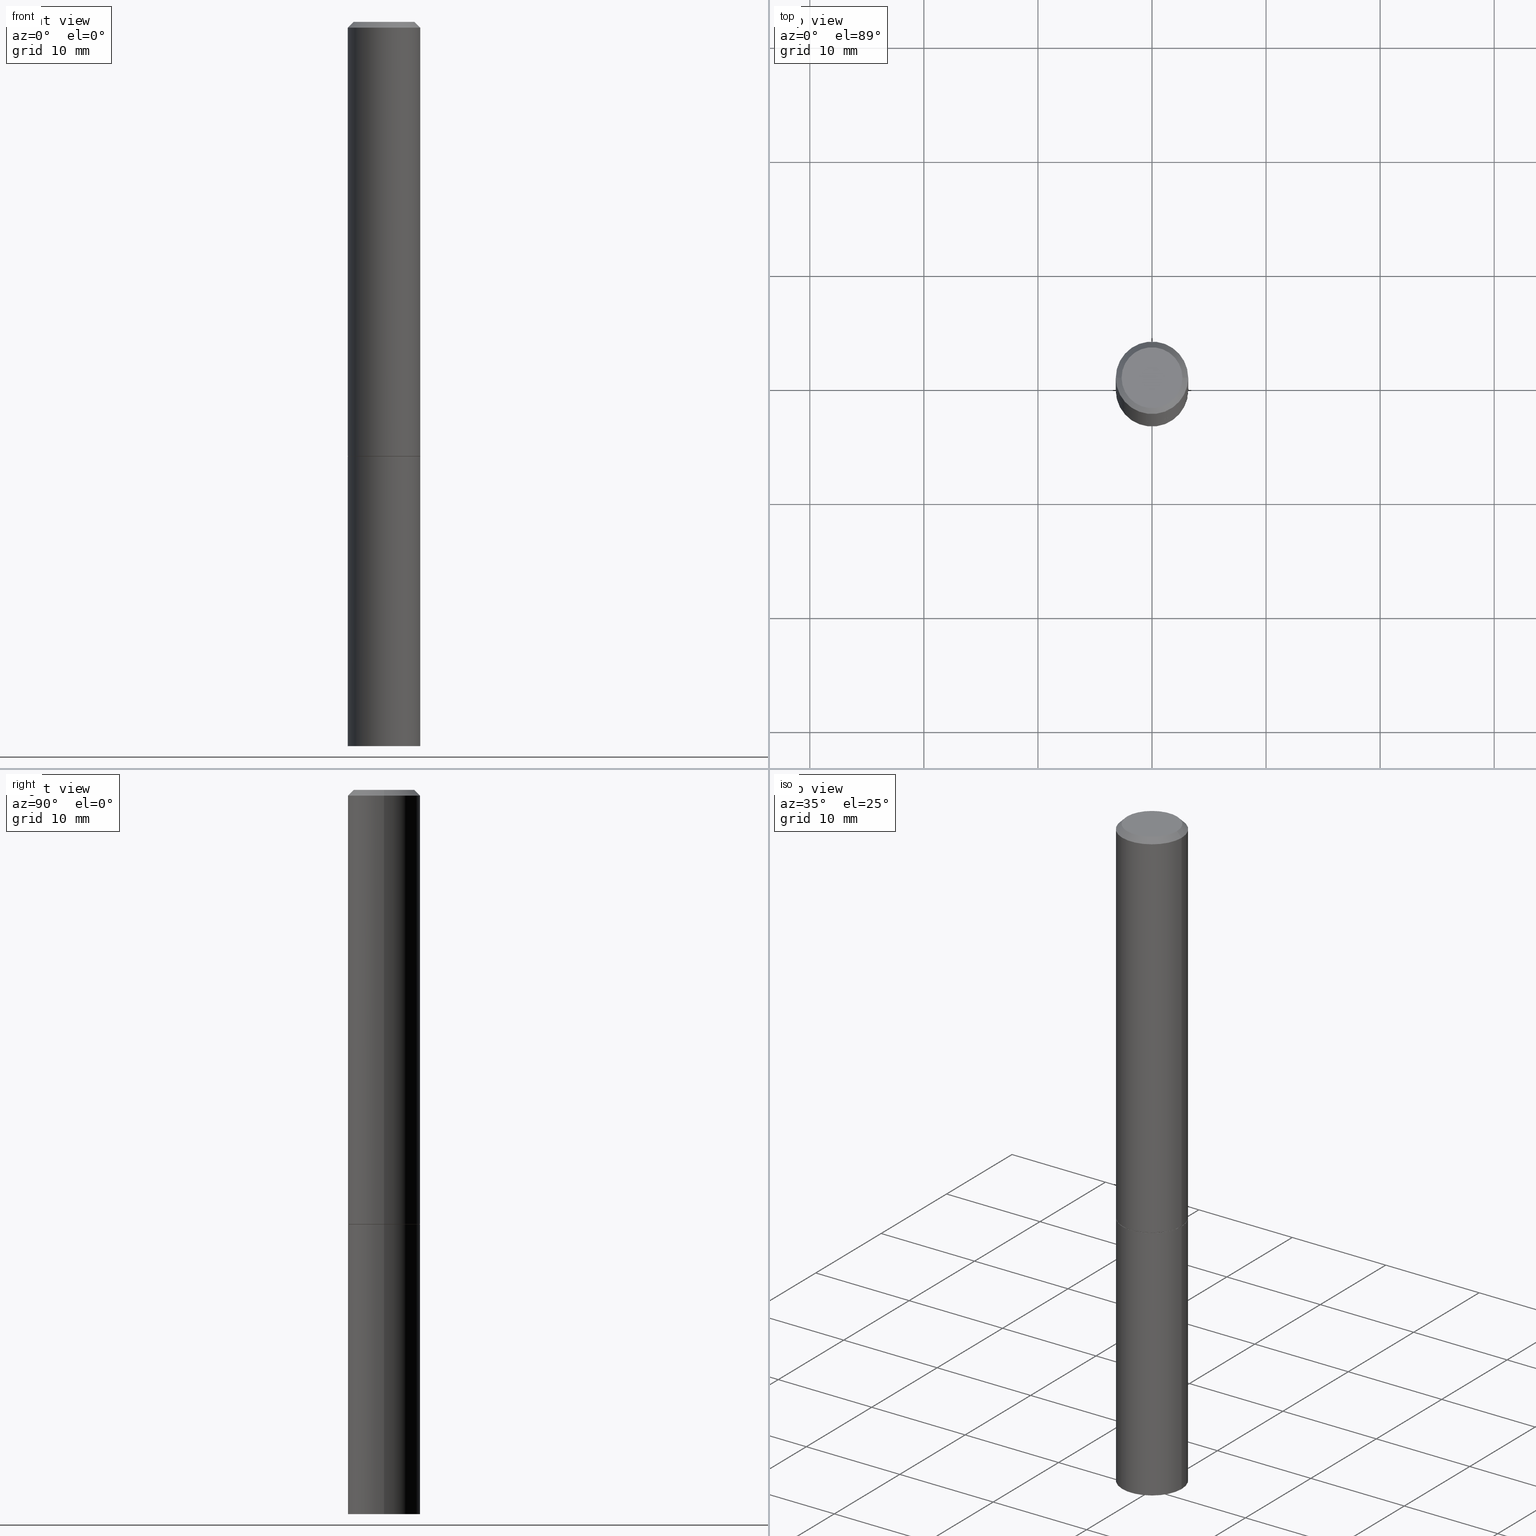
[diagram: canonical four-view strip — front | top / right | iso, engineering-drawing reading convention]
A machine part, canonical four-view strip (front | top / right | iso — engineering-drawing reading convention). The complete STEP part file that produces these views, byte-faithful:
ISO-10303-21;
HEADER;
FILE_DESCRIPTION (( 'STEP AP203' ),
    '1' );
FILE_NAME ('73013.STEP',
    '2024-02-29T06:53:06',
    ( '' ),
    ( '' ),
    'SwSTEP 2.0',
    'SolidWorks 2023',
    '' );
FILE_SCHEMA (( 'CONFIG_CONTROL_DESIGN' ));
ENDSEC;

DATA;
#1 = ORIENTED_EDGE ( 'NONE', *, *, #271, .T. ) ;
#2 = CARTESIAN_POINT ( 'NONE',  ( 8.350811314681758556E-46, -1.192274536304357760E-31, -3.414809992080329023E-17 ) ) ;
#3 = FACE_OUTER_BOUND ( 'NONE', #124, .T. ) ;
#4 = CIRCLE ( 'NONE', #70, 0.1250000000000000278 ) ;
#5 = CONICAL_SURFACE ( 'NONE', #299, 0.1239999999999999991, 0.7853981633974311816 ) ;
#6 = DIRECTION ( 'NONE',  ( 0.7071067811865353603, -2.468850131082130054E-15, 0.7071067811865595631 ) ) ;
#7 = CARTESIAN_POINT ( 'NONE',  ( 3.665757740471519853E-29, -5.233730526925875958E-15, -1.499000000000000110 ) ) ;
#8 = PERSON_AND_ORGANIZATION_ROLE ( 'classification_officer' ) ;
#9 = DIRECTION ( 'NONE',  ( 1.000000000000000000, -6.982962677686266711E-15, 4.876176775795935793E-29 ) ) ;
#10 = PLANE ( 'NONE',  #255 ) ;
#11 = LINE ( 'NONE', #148, #98 ) ;
#12 = SECURITY_CLASSIFICATION ( '', '', #302 ) ;
#13 = EDGE_CURVE ( 'NONE', #85, #67, #212, .T. ) ;
#14 = CC_DESIGN_PERSON_AND_ORGANIZATION_ASSIGNMENT ( #267, #8, ( #12 ) ) ;
#15 = ORIENTED_EDGE ( 'NONE', *, *, #13, .F. ) ;
#16 = CONICAL_SURFACE ( 'NONE', #341, 0.1249999999999998335, 0.7853981633974465026 ) ;
#17 = EDGE_LOOP ( 'NONE', ( #205, #275, #243, #151 ) ) ;
#18 = EDGE_CURVE ( 'NONE', #67, #297, #329, .T. ) ;
#19 = PERSON_AND_ORGANIZATION ( #343, #71 ) ;
#20 = ORIENTED_EDGE ( 'NONE', *, *, #100, .F. ) ;
#21 = APPROVAL_ROLE ( '' ) ;
#22 = PERSON_AND_ORGANIZATION_ROLE ( 'creator' ) ;
#23 = PLANE ( 'NONE',  #364 ) ;
#24 = CC_DESIGN_PERSON_AND_ORGANIZATION_ASSIGNMENT ( #363, #356, ( #75 ) ) ;
#25 = AXIS2_PLACEMENT_3D ( 'NONE', #197, #285, #110 ) ;
#26 = DIRECTION ( 'NONE',  ( -2.445468806185136597E-29, 3.491481338843145583E-15, 1.000000000000000000 ) ) ;
#27 = CC_DESIGN_PERSON_AND_ORGANIZATION_ASSIGNMENT ( #80, #282, ( #339 ) ) ;
#28 = DIRECTION ( 'NONE',  ( 1.000000000000000000, -6.982962677686266711E-15, 4.876176775795935793E-29 ) ) ;
#29 = CALENDAR_DATE ( 2024, 29, 2 ) ;
#30 = DIRECTION ( 'NONE',  ( -2.445468806185136597E-29, 3.491481338843145583E-15, 1.000000000000000000 ) ) ;
#31 = AXIS2_PLACEMENT_3D ( 'NONE', #2, #123, #296 ) ;
#32 = DIRECTION ( 'NONE',  ( 1.000000000000000000, -6.982962677686270655E-15, 0.000000000000000000 ) ) ;
#33 = EDGE_CURVE ( 'NONE', #320, #193, #283, .T. ) ;
#34 = DIRECTION ( 'NONE',  ( 1.000000000000000000, -6.982962677686266711E-15, 4.876176775795935793E-29 ) ) ;
#35 = VERTEX_POINT ( 'NONE', #76 ) ;
#36 = EDGE_LOOP ( 'NONE', ( #175, #64 ) ) ;
#37 = VECTOR ( 'NONE', #306, 39.37007874015748143 ) ;
#38 = CARTESIAN_POINT ( 'NONE',  ( 0.1250000000000000278, -6.106600861636660086E-15, -1.499000000000000110 ) ) ;
#39 = APPROVAL_PERSON_ORGANIZATION ( #328, #182, #21 ) ;
#40 = DIRECTION ( 'NONE',  ( -0.7071067811865353603, 7.493145998870309984E-15, 0.7071067811865595631 ) ) ;
#41 = ORIENTED_EDGE ( 'NONE', *, *, #173, .T. ) ;
#42 = AXIS2_PLACEMENT_3D ( 'NONE', #204, #316, #56 ) ;
#43 = CC_DESIGN_DATE_AND_TIME_ASSIGNMENT ( #263, #203, ( #12 ) ) ;
#44 = EDGE_CURVE ( 'NONE', #348, #321, #219, .T. ) ;
#45 = CARTESIAN_POINT ( 'NONE',  ( 4.890937612370288923E-31, -6.982962677686312563E-17, -0.02000000000000006287 ) ) ;
#46 = EDGE_LOOP ( 'NONE', ( #274, #278, #133, #240 ) ) ;
#47 = PRODUCT_RELATED_PRODUCT_CATEGORY ( 'detail', '', ( #236 ) ) ;
#48 = COORDINATED_UNIVERSAL_TIME_OFFSET ( 5, 0, .BEHIND. ) ;
#49 = LINE ( 'NONE', #310, #242 ) ;
#50 = DIRECTION ( 'NONE',  ( -2.445468806185136877E-29, 3.491481338843145188E-15, 1.000000000000000000 ) ) ;
#51 = DIRECTION ( 'NONE',  ( -2.445468806185136597E-29, 3.491481338843145583E-15, 1.000000000000000000 ) ) ;
#52 = DIRECTION ( 'NONE',  ( 1.000000000000000000, -6.982962677686265922E-15, 4.874400871621244381E-29 ) ) ;
#53 = ORIENTED_EDGE ( 'NONE', *, *, #18, .F. ) ;
#54 = CARTESIAN_POINT ( 'NONE',  ( 0.1250000000000000000, -9.601573681818648281E-15, -2.500000000000000000 ) ) ;
#55 = ORIENTED_EDGE ( 'NONE', *, *, #33, .F. ) ;
#56 = DIRECTION ( 'NONE',  ( 1.000000000000000000, -6.982962677686265922E-15, 4.876176775795935793E-29 ) ) ;
#57 = DIRECTION ( 'NONE',  ( -2.445468806185136597E-29, 3.491481338843145583E-15, 1.000000000000000000 ) ) ;
#58 = CONICAL_SURFACE ( 'NONE', #208, 0.1239999999999999991, 0.7853981633974311816 ) ;
#59 = CC_DESIGN_DATE_AND_TIME_ASSIGNMENT ( #284, #220, ( #75 ) ) ;
#60 = DIRECTION ( 'NONE',  ( -0.7071067811865462405, 2.468850131082243256E-15, -0.7071067811865487940 ) ) ;
#61 = APPLICATION_CONTEXT ( 'configuration controlled 3d designs of mechanical parts and assemblies' ) ;
#62 = CYLINDRICAL_SURFACE ( 'NONE', #351, 0.1249999999999999306 ) ;
#63 = ADVANCED_FACE ( 'NONE', ( #3 ), #62, .T. ) ;
#64 = ORIENTED_EDGE ( 'NONE', *, *, #218, .T. ) ;
#65 = DIRECTION ( 'NONE',  ( -2.445468806185136877E-29, 3.491481338843145188E-15, 1.000000000000000000 ) ) ;
#66 = AXIS2_PLACEMENT_3D ( 'NONE', #129, #253, #357 ) ;
#67 = VERTEX_POINT ( 'NONE', #166 ) ;
#68 = DIMENSIONAL_EXPONENTS ( 1.000000000000000000, 0.000000000000000000, 0.000000000000000000, 0.000000000000000000, 0.000000000000000000, 0.000000000000000000, 0.000000000000000000 ) ;
#69 = APPLICATION_PROTOCOL_DEFINITION ( 'international standard', 'config_control_design', 1994, #109 ) ;
#70 = AXIS2_PLACEMENT_3D ( 'NONE', #7, #122, #88 ) ;
#71 = ORGANIZATION ( 'UNSPECIFIED', 'UNSPECIFIED', '' ) ;
#72 = PERSON_AND_ORGANIZATION ( #343, #71 ) ;
#73 = CARTESIAN_POINT ( 'NONE',  ( 6.113672015462842613E-29, -8.728703347107864943E-15, -2.500000000000000000 ) ) ;
#74 = FACE_OUTER_BOUND ( 'NONE', #94, .T. ) ;
#75 = PRODUCT_DEFINITION ( 'UNKNOWN', '', #339, #276 ) ;
#76 = CARTESIAN_POINT ( 'NONE',  ( 0.1250000000000000000, -6.110092342975501516E-15, -1.500000000000000222 ) ) ;
#77 = APPLICATION_PROTOCOL_DEFINITION ( 'international standard', 'config_control_design', 1994, #61 ) ;
#78 = CIRCLE ( 'NONE', #293, 0.1250000000000000000 ) ;
#79 = VECTOR ( 'NONE', #60, 39.37007874015748143 ) ;
#80 = PERSON_AND_ORGANIZATION ( #343, #71 ) ;
#81 = DATE_AND_TIME ( #340, #223 ) ;
#82 = DIRECTION ( 'NONE',  ( 1.000000000000000000, -6.982962677686270655E-15, 0.000000000000000000 ) ) ;
#83 = SHAPE_DEFINITION_REPRESENTATION ( #165, #238 ) ;
#84 = LINE ( 'NONE', #269, #130 ) ;
#85 = VERTEX_POINT ( 'NONE', #167 ) ;
#86 = PERSON_AND_ORGANIZATION ( #343, #71 ) ;
#87 = PLANE ( 'NONE',  #42 ) ;
#88 = DIRECTION ( 'NONE',  ( 1.000000000000000000, -6.982962677686269077E-15, 0.000000000000000000 ) ) ;
#89 = VERTEX_POINT ( 'NONE', #345 ) ;
#90 = APPROVAL ( #155, 'UNSPECIFIED' ) ;
#91 = CARTESIAN_POINT ( 'NONE',  ( 8.350811314681758556E-46, -1.192274536304357760E-31, -3.414809992080329023E-17 ) ) ;
#92 = AXIS2_PLACEMENT_3D ( 'NONE', #265, #139, #292 ) ;
#93 = ORIENTED_EDGE ( 'NONE', *, *, #313, .F. ) ;
#94 = EDGE_LOOP ( 'NONE', ( #281, #183 ) ) ;
#95 = FACE_OUTER_BOUND ( 'NONE', #99, .T. ) ;
#96 = FACE_OUTER_BOUND ( 'NONE', #36, .T. ) ;
#97 = ORIENTED_EDGE ( 'NONE', *, *, #153, .F. ) ;
#98 = VECTOR ( 'NONE', #65, 39.37007874015748143 ) ;
#99 = EDGE_LOOP ( 'NONE', ( #210, #317, #55, #355 ) ) ;
#100 = EDGE_CURVE ( 'NONE', #297, #359, #4, .T. ) ;
#101 = ORIENTED_EDGE ( 'NONE', *, *, #104, .T. ) ;
#102 = MANIFOLD_SOLID_BREP ( 'Body-Move/Copy2[2]', #178 ) ;
#103 = EDGE_LOOP ( 'NONE', ( #15, #125 ) ) ;
#104 = EDGE_CURVE ( 'NONE', #193, #320, #169, .T. ) ;
#105 = DIRECTION ( 'NONE',  ( 2.445468806185136597E-29, -3.491481338843145583E-15, -1.000000000000000000 ) ) ;
#106 = ORIENTED_EDGE ( 'NONE', *, *, #138, .F. ) ;
#107 = DATE_AND_TIME ( #196, #235 ) ;
#108 = CARTESIAN_POINT ( 'NONE',  ( 3.668203209277704895E-29, -5.237222008264718177E-15, -1.500000000000000222 ) ) ;
#109 = APPLICATION_CONTEXT ( 'configuration controlled 3d designs of mechanical parts and assemblies' ) ;
#110 = DIRECTION ( 'NONE',  ( 1.000000000000000000, -6.982962677686270655E-15, 0.000000000000000000 ) ) ;
#111 = CALENDAR_DATE ( 2024, 29, 2 ) ;
#112 = DIRECTION ( 'NONE',  ( 2.438088387897960049E-29, -3.491481338843145188E-15, -1.000000000000000000 ) ) ;
#113 = ADVANCED_FACE ( 'NONE', ( #272 ), #10, .T. ) ;
#114 = FACE_OUTER_BOUND ( 'NONE', #142, .T. ) ;
#115 = CC_DESIGN_PERSON_AND_ORGANIZATION_ASSIGNMENT ( #286, #22, ( #339 ) ) ;
#116 = CARTESIAN_POINT ( 'NONE',  ( 0.000000000000000000, 0.000000000000000000, 0.000000000000000000 ) ) ;
#117 = DIRECTION ( 'NONE',  ( -2.445468806185136597E-29, 3.491481338843145583E-15, 1.000000000000000000 ) ) ;
#118 = CIRCLE ( 'NONE', #248, 0.1239999999999999991 ) ;
#119 = COORDINATED_UNIVERSAL_TIME_OFFSET ( 5, 0, .BEHIND. ) ;
#120 = DIRECTION ( 'NONE',  ( 1.000000000000000000, -6.982962677686270655E-15, 0.000000000000000000 ) ) ;
#121 = ADVANCED_FACE ( 'NONE', ( #96 ), #211, .F. ) ;
#122 = DIRECTION ( 'NONE',  ( -2.445468806185136597E-29, 3.491481338843145583E-15, 1.000000000000000000 ) ) ;
#123 = DIRECTION ( 'NONE',  ( -2.445468806185136597E-29, 3.491481338843145583E-15, 1.000000000000000000 ) ) ;
#124 = EDGE_LOOP ( 'NONE', ( #97, #303, #277, #327 ) ) ;
#125 = ORIENTED_EDGE ( 'NONE', *, *, #271, .F. ) ;
#126 = LOCAL_TIME ( 1, 53, 6.000000000000000000, #48 ) ;
#127 = EDGE_CURVE ( 'NONE', #348, #181, #78, .T. ) ;
#128 = CARTESIAN_POINT ( 'NONE',  ( 4.890937612370288923E-31, -6.982962677686312563E-17, -0.02000000000000006287 ) ) ;
#129 = CARTESIAN_POINT ( 'NONE',  ( 3.668203209277704895E-29, -5.237222008264718177E-15, -1.500000000000000222 ) ) ;
#130 = VECTOR ( 'NONE', #6, 39.37007874015748854 ) ;
#131 = ADVANCED_FACE ( 'NONE', ( #358 ), #333, .T. ) ;
#132 = VERTEX_POINT ( 'NONE', #159 ) ;
#133 = ORIENTED_EDGE ( 'NONE', *, *, #257, .F. ) ;
#134 =( CONVERSION_BASED_UNIT ( 'INCH', #136 ) LENGTH_UNIT ( ) NAMED_UNIT ( #68 ) );
#135 = LOCAL_TIME ( 1, 53, 6.000000000000000000, #230 ) ;
#136 = LENGTH_MEASURE_WITH_UNIT ( LENGTH_MEASURE( 0.02539999999999999897 ), #209 );
#137 = CARTESIAN_POINT ( 'NONE',  ( 0.000000000000000000, 0.000000000000000000, 0.000000000000000000 ) ) ;
#138 = EDGE_CURVE ( 'NONE', #35, #321, #140, .T. ) ;
#139 = DIRECTION ( 'NONE',  ( -2.445468806185136597E-29, 3.491481338843145583E-15, 1.000000000000000000 ) ) ;
#140 = CIRCLE ( 'NONE', #279, 0.1250000000000000000 ) ;
#141 = CIRCLE ( 'NONE', #170, 0.1250000000000000278 ) ;
#142 = EDGE_LOOP ( 'NONE', ( #300, #217, #106, #226 ) ) ;
#143 = CYLINDRICAL_SURFACE ( 'NONE', #231, 0.1250000000000000000 ) ;
#144 = ADVANCED_FACE ( 'NONE', ( #74 ), #23, .F. ) ;
#145 = CARTESIAN_POINT ( 'NONE',  ( 3.665757740471519853E-29, -5.233730526925875958E-15, -1.499000000000000110 ) ) ;
#146 = CARTESIAN_POINT ( 'NONE',  ( -0.1250000000000000555, -1.763601657151242227E-15, -1.499000000000000110 ) ) ;
#147 = DIRECTION ( 'NONE',  ( 1.000000000000000000, -6.982962677686266711E-15, 0.000000000000000000 ) ) ;
#148 = CARTESIAN_POINT ( 'NONE',  ( 0.1250000000000000000, -8.728703347107833388E-16, 6.095220969744919741E-30 ) ) ;
#149 = EDGE_CURVE ( 'NONE', #181, #348, #185, .T. ) ;
#150 = EDGE_LOOP ( 'NONE', ( #152, #349 ) ) ;
#151 = ORIENTED_EDGE ( 'NONE', *, *, #218, .F. ) ;
#152 = ORIENTED_EDGE ( 'NONE', *, *, #149, .F. ) ;
#153 = EDGE_CURVE ( 'NONE', #297, #193, #49, .T. ) ;
#154 = DIRECTION ( 'NONE',  ( -1.000000000000000000, 6.982962677686265922E-15, -4.876176775795935793E-29 ) ) ;
#155 = APPROVAL_STATUS ( 'not_yet_approved' ) ;
#156 = EDGE_CURVE ( 'NONE', #359, #320, #198, .T. ) ;
#157 = CALENDAR_DATE ( 2024, 29, 2 ) ;
#158 =( NAMED_UNIT ( * ) SI_UNIT ( $, .STERADIAN. ) SOLID_ANGLE_UNIT ( ) );
#159 = CARTESIAN_POINT ( 'NONE',  ( 0.1049999999999998712, -8.238720831321566783E-16, -3.414809992079784832E-17 ) ) ;
#160 = APPROVAL_DATE_TIME ( #335, #182 ) ;
#161 = APPROVAL_DATE_TIME ( #81, #224 ) ;
#162 = CARTESIAN_POINT ( 'NONE',  ( -0.1249999999999998335, 8.030407079339190545E-16, -0.02000000000000006287 ) ) ;
#163 = AXIS2_PLACEMENT_3D ( 'NONE', #215, #251, #227 ) ;
#164 = CC_DESIGN_APPROVAL ( #182, ( #339 ) ) ;
#165 = PRODUCT_DEFINITION_SHAPE ( 'NONE', 'NONE',  #75 ) ;
#166 = CARTESIAN_POINT ( 'NONE',  ( -0.1239999999999999991, -4.350850561573972339E-15, -1.500000000000000222 ) ) ;
#167 = CARTESIAN_POINT ( 'NONE',  ( 0.1239999999999999991, -6.103109380297816290E-15, -1.500000000000000222 ) ) ;
#168 = FACE_OUTER_BOUND ( 'NONE', #46, .T. ) ;
#169 = CIRCLE ( 'NONE', #268, 0.1249999999999998335 ) ;
#170 = AXIS2_PLACEMENT_3D ( 'NONE', #145, #234, #342 ) ;
#171 = FACE_OUTER_BOUND ( 'NONE', #323, .T. ) ;
#172 = ADVANCED_FACE ( 'NONE', ( #199 ), #202, .T. ) ;
#173 = EDGE_CURVE ( 'NONE', #132, #320, #312, .T. ) ;
#174 = ORIENTED_EDGE ( 'NONE', *, *, #33, .T. ) ;
#175 = ORIENTED_EDGE ( 'NONE', *, *, #138, .T. ) ;
#176 = DIRECTION ( 'NONE',  ( 1.000000000000000000, -6.982962677686266711E-15, 4.876176775795935793E-29 ) ) ;
#177 = CARTESIAN_POINT ( 'NONE',  ( 8.728703347108198236E-16, 0.1249999999999947542, -1.500000000000000666 ) ) ;
#178 = CLOSED_SHELL ( 'NONE', ( #294, #315, #331, #131, #63, #180, #287, #144 ) ) ;
#179 = CC_DESIGN_APPROVAL ( #224, ( #12 ) ) ;
#180 = ADVANCED_FACE ( 'NONE', ( #171 ), #5, .T. ) ;
#181 = VERTEX_POINT ( 'NONE', #54 ) ;
#182 = APPROVAL ( #188, 'UNSPECIFIED' ) ;
#183 = ORIENTED_EDGE ( 'NONE', *, *, #189, .T. ) ;
#184 = EDGE_LOOP ( 'NONE', ( #222, #41, #174, #93 ) ) ;
#185 = CIRCLE ( 'NONE', #25, 0.1250000000000000000 ) ;
#186 = CIRCLE ( 'NONE', #31, 0.1049999999999998712 ) ;
#187 = CARTESIAN_POINT ( 'NONE',  ( -0.1250000000000000000, 8.881784197001252323E-16, -6.148668862818632227E-30 ) ) ;
#188 = APPROVAL_STATUS ( 'not_yet_approved' ) ;
#189 = EDGE_CURVE ( 'NONE', #132, #89, #186, .T. ) ;
#190 = CARTESIAN_POINT ( 'NONE',  ( -0.1239999999999999991, -4.356149015922194741E-15, -1.500000000000000222 ) ) ;
#191 =( NAMED_UNIT ( * ) PLANE_ANGLE_UNIT ( ) SI_UNIT ( $, .RADIAN. ) );
#192 = DIRECTION ( 'NONE',  ( -1.000000000000000000, 6.982962677686266711E-15, 0.000000000000000000 ) ) ;
#193 = VERTEX_POINT ( 'NONE', #162 ) ;
#194 = PERSON_AND_ORGANIZATION_ROLE ( 'design_owner' ) ;
#195 = DIRECTION ( 'NONE',  ( -1.000000000000000000, 6.982962677686265922E-15, -4.876176775795935793E-29 ) ) ;
#196 = CALENDAR_DATE ( 2024, 29, 2 ) ;
#197 = CARTESIAN_POINT ( 'NONE',  ( 6.113672015462842613E-29, -8.728703347107864943E-15, -2.500000000000000000 ) ) ;
#198 = LINE ( 'NONE', #338, #288 ) ;
#199 = FACE_OUTER_BOUND ( 'NONE', #17, .T. ) ;
#200 = APPROVAL_PERSON_ORGANIZATION ( #19, #90, #256 ) ;
#201 = CARTESIAN_POINT ( 'NONE',  ( 0.000000000000000000, 0.000000000000000000, 0.000000000000000000 ) ) ;
#202 = CYLINDRICAL_SURFACE ( 'NONE', #305, 0.1250000000000000000 ) ;
#203 = DATE_TIME_ROLE ( 'classification_date' ) ;
#204 = CARTESIAN_POINT ( 'NONE',  ( 3.668203209277704895E-29, -5.237222008264718177E-15, -1.500000000000000222 ) ) ;
#205 = ORIENTED_EDGE ( 'NONE', *, *, #44, .F. ) ;
#206 = CARTESIAN_POINT ( 'NONE',  ( 3.668203209277704895E-29, -5.237222008264718177E-15, -1.500000000000000222 ) ) ;
#207 = CARTESIAN_POINT ( 'NONE',  ( 4.890937612370288923E-31, -6.982962677686312563E-17, -0.02000000000000006287 ) ) ;
#208 = AXIS2_PLACEMENT_3D ( 'NONE', #206, #295, #32 ) ;
#209 =( LENGTH_UNIT ( ) NAMED_UNIT ( * ) SI_UNIT ( $, .METRE. ) );
#210 = ORIENTED_EDGE ( 'NONE', *, *, #257, .T. ) ;
#211 = PLANE ( 'NONE',  #304 ) ;
#212 = CIRCLE ( 'NONE', #66, 0.1239999999999999991 ) ;
#213 = AXIS2_PLACEMENT_3D ( 'NONE', #91, #30, #52 ) ;
#214 = ORIENTED_EDGE ( 'NONE', *, *, #173, .F. ) ;
#215 = CARTESIAN_POINT ( 'NONE',  ( 4.890937612370288923E-31, -6.982962677686312563E-17, -0.02000000000000006287 ) ) ;
#216 = CARTESIAN_POINT ( 'NONE',  ( 8.728703347108443769E-16, 0.1249999999999912709, -2.500000000000000444 ) ) ;
#217 = ORIENTED_EDGE ( 'NONE', *, *, #44, .T. ) ;
#218 = EDGE_CURVE ( 'NONE', #321, #35, #280, .T. ) ;
#219 = LINE ( 'NONE', #187, #37 ) ;
#220 = DATE_TIME_ROLE ( 'creation_date' ) ;
#221 = DIRECTION ( 'NONE',  ( 2.438088387897960049E-29, -3.491481338843145188E-15, -1.000000000000000000 ) ) ;
#222 = ORIENTED_EDGE ( 'NONE', *, *, #189, .F. ) ;
#223 = LOCAL_TIME ( 1, 53, 6.000000000000000000, #291 ) ;
#224 = APPROVAL ( #346, 'UNSPECIFIED' ) ;
#225 = DIRECTION ( 'NONE',  ( 1.000000000000000000, -6.982962677686262766E-15, 0.000000000000000000 ) ) ;
#226 = ORIENTED_EDGE ( 'NONE', *, *, #344, .F. ) ;
#227 = DIRECTION ( 'NONE',  ( 1.000000000000000000, -6.982962677686266711E-15, 0.000000000000000000 ) ) ;
#228 = EDGE_CURVE ( 'NONE', #89, #132, #264, .T. ) ;
#229 = AXIS2_PLACEMENT_3D ( 'NONE', #45, #105, #192 ) ;
#230 = COORDINATED_UNIVERSAL_TIME_OFFSET ( 5, 0, .BEHIND. ) ;
#231 = AXIS2_PLACEMENT_3D ( 'NONE', #239, #117, #28 ) ;
#232 = CARTESIAN_POINT ( 'NONE',  ( 3.668203209277704895E-29, -5.237222008264718177E-15, -1.500000000000000222 ) ) ;
#233 = DIRECTION ( 'NONE',  ( -2.445468806185136597E-29, 3.491481338843145583E-15, 1.000000000000000000 ) ) ;
#234 = DIRECTION ( 'NONE',  ( -2.445468806185136597E-29, 3.491481338843145583E-15, 1.000000000000000000 ) ) ;
#235 = LOCAL_TIME ( 1, 53, 6.000000000000000000, #361 ) ;
#236 = PRODUCT ( '73013', '73013', '', ( #307 ) ) ;
#237 = FACE_OUTER_BOUND ( 'NONE', #103, .T. ) ;
#238 = ADVANCED_BREP_SHAPE_REPRESENTATION ( '73013', ( #347, #102, #319 ), #244 ) ;
#239 = CARTESIAN_POINT ( 'NONE',  ( 0.000000000000000000, 0.000000000000000000, 0.000000000000000000 ) ) ;
#240 = ORIENTED_EDGE ( 'NONE', *, *, #260, .F. ) ;
#241 = CYLINDRICAL_SURFACE ( 'NONE', #334, 0.1249999999999999306 ) ;
#242 = VECTOR ( 'NONE', #50, 39.37007874015748143 ) ;
#243 = ORIENTED_EDGE ( 'NONE', *, *, #344, .T. ) ;
#244 =( GEOMETRIC_REPRESENTATION_CONTEXT ( 3 ) GLOBAL_UNCERTAINTY_ASSIGNED_CONTEXT ( ( #261 ) ) GLOBAL_UNIT_ASSIGNED_CONTEXT ( ( #134, #191, #158 ) ) REPRESENTATION_CONTEXT ( 'NONE', 'WORKASPACE' ) );
#245 = ORIENTED_EDGE ( 'NONE', *, *, #260, .T. ) ;
#246 = DIRECTION ( 'NONE',  ( 2.438088387897960049E-29, -3.491481338843145188E-15, -1.000000000000000000 ) ) ;
#247 = CARTESIAN_POINT ( 'NONE',  ( 0.000000000000000000, 0.000000000000000000, 0.000000000000000000 ) ) ;
#248 = AXIS2_PLACEMENT_3D ( 'NONE', #232, #51, #120 ) ;
#249 = CARTESIAN_POINT ( 'NONE',  ( -0.1250000000000000000, -6.094784257986165933E-15, -1.500000000000000222 ) ) ;
#250 = ADVANCED_FACE ( 'NONE', ( #114 ), #143, .T. ) ;
#251 = DIRECTION ( 'NONE',  ( -2.445468806185136597E-29, 3.491481338843145583E-15, 1.000000000000000000 ) ) ;
#252 = DIRECTION ( 'NONE',  ( 0.000000000000000000, 0.000000000000000000, 1.000000000000000000 ) ) ;
#253 = DIRECTION ( 'NONE',  ( -2.445468806185136597E-29, 3.491481338843145583E-15, 1.000000000000000000 ) ) ;
#254 = DIRECTION ( 'NONE',  ( -2.445468806185136597E-29, 3.491481338843145583E-15, 1.000000000000000000 ) ) ;
#255 = AXIS2_PLACEMENT_3D ( 'NONE', #216, #246, #154 ) ;
#256 = APPROVAL_ROLE ( '' ) ;
#257 = EDGE_CURVE ( 'NONE', #359, #297, #141, .T. ) ;
#258 = DIRECTION ( 'NONE',  ( 1.000000000000000000, -6.982962677686270655E-15, 0.000000000000000000 ) ) ;
#259 = ORIENTED_EDGE ( 'NONE', *, *, #313, .T. ) ;
#260 = EDGE_CURVE ( 'NONE', #85, #359, #84, .T. ) ;
#261 = UNCERTAINTY_MEASURE_WITH_UNIT (LENGTH_MEASURE( 1.000000000000000082E-05 ), #134, 'distance_accuracy_value', 'NONE');
#262 = VECTOR ( 'NONE', #40, 39.37007874015748854 ) ;
#263 = DATE_AND_TIME ( #29, #365 ) ;
#264 = CIRCLE ( 'NONE', #213, 0.1049999999999998712 ) ;
#265 = CARTESIAN_POINT ( 'NONE',  ( 3.668203209277704895E-29, -5.237222008264718177E-15, -1.500000000000000222 ) ) ;
#266 = CARTESIAN_POINT ( 'NONE',  ( 3.668203209277704895E-29, -5.237222008264718177E-15, -1.500000000000000222 ) ) ;
#267 = PERSON_AND_ORGANIZATION ( #343, #71 ) ;
#268 = AXIS2_PLACEMENT_3D ( 'NONE', #207, #57, #147 ) ;
#269 = CARTESIAN_POINT ( 'NONE',  ( 0.1239999999999999991, -6.103109380297816290E-15, -1.500000000000000222 ) ) ;
#270 = LINE ( 'NONE', #318, #79 ) ;
#271 = EDGE_CURVE ( 'NONE', #67, #85, #118, .T. ) ;
#272 = FACE_OUTER_BOUND ( 'NONE', #150, .T. ) ;
#273 = CARTESIAN_POINT ( 'NONE',  ( -0.1250000000000000000, -6.094784257986165933E-15, -2.500000000000000000 ) ) ;
#274 = ORIENTED_EDGE ( 'NONE', *, *, #13, .T. ) ;
#275 = ORIENTED_EDGE ( 'NONE', *, *, #127, .T. ) ;
#276 = DESIGN_CONTEXT ( 'detailed design', #61, 'design' ) ;
#277 = ORIENTED_EDGE ( 'NONE', *, *, #156, .T. ) ;
#278 = ORIENTED_EDGE ( 'NONE', *, *, #18, .T. ) ;
#279 = AXIS2_PLACEMENT_3D ( 'NONE', #108, #336, #225 ) ;
#280 = CIRCLE ( 'NONE', #92, 0.1250000000000000000 ) ;
#281 = ORIENTED_EDGE ( 'NONE', *, *, #228, .T. ) ;
#282 = PERSON_AND_ORGANIZATION_ROLE ( 'design_supplier' ) ;
#283 = CIRCLE ( 'NONE', #163, 0.1249999999999998335 ) ;
#284 = DATE_AND_TIME ( #111, #135 ) ;
#285 = DIRECTION ( 'NONE',  ( -2.445468806185136597E-29, 3.491481338843145583E-15, 1.000000000000000000 ) ) ;
#286 = PERSON_AND_ORGANIZATION ( #343, #71 ) ;
#287 = ADVANCED_FACE ( 'NONE', ( #237 ), #87, .F. ) ;
#288 = VECTOR ( 'NONE', #366, 39.37007874015748143 ) ;
#289 = VECTOR ( 'NONE', #290, 39.37007874015748143 ) ;
#290 = DIRECTION ( 'NONE',  ( 0.7071067811865462405, -7.319954787623251312E-15, -0.7071067811865487940 ) ) ;
#291 = COORDINATED_UNIVERSAL_TIME_OFFSET ( 5, 0, .BEHIND. ) ;
#292 = DIRECTION ( 'NONE',  ( 1.000000000000000000, -6.982962677686262766E-15, 0.000000000000000000 ) ) ;
#293 = AXIS2_PLACEMENT_3D ( 'NONE', #73, #254, #258 ) ;
#294 = ADVANCED_FACE ( 'NONE', ( #168 ), #58, .T. ) ;
#295 = DIRECTION ( 'NONE',  ( -2.445468806185136597E-29, 3.491481338843145583E-15, 1.000000000000000000 ) ) ;
#296 = DIRECTION ( 'NONE',  ( 1.000000000000000000, -6.982962677686265922E-15, 4.874400871621244381E-29 ) ) ;
#297 = VERTEX_POINT ( 'NONE', #146 ) ;
#298 = DIRECTION ( 'NONE',  ( -2.445468806185136597E-29, 3.491481338843145583E-15, 1.000000000000000000 ) ) ;
#299 = AXIS2_PLACEMENT_3D ( 'NONE', #266, #26, #82 ) ;
#300 = ORIENTED_EDGE ( 'NONE', *, *, #149, .T. ) ;
#301 = ORIENTED_EDGE ( 'NONE', *, *, #228, .F. ) ;
#302 = SECURITY_CLASSIFICATION_LEVEL ( 'unclassified' ) ;
#303 = ORIENTED_EDGE ( 'NONE', *, *, #100, .T. ) ;
#304 = AXIS2_PLACEMENT_3D ( 'NONE', #177, #221, #362 ) ;
#305 = AXIS2_PLACEMENT_3D ( 'NONE', #116, #233, #9 ) ;
#306 = DIRECTION ( 'NONE',  ( -2.445468806185136877E-29, 3.491481338843145188E-15, 1.000000000000000000 ) ) ;
#307 = MECHANICAL_CONTEXT ( 'NONE', #109, 'mechanical' ) ;
#308 = APPROVAL_PERSON_ORGANIZATION ( #86, #224, #337 ) ;
#309 = CARTESIAN_POINT ( 'NONE',  ( 7.332110811570570383E-16, 0.1049999999999998712, -3.836795905389314585E-16 ) ) ;
#310 = CARTESIAN_POINT ( 'NONE',  ( -0.1249999999999999306, 8.881784197001247393E-16, -6.148668862818628724E-30 ) ) ;
#311 = CARTESIAN_POINT ( 'NONE',  ( 0.1249999999999998335, -9.273918764983033630E-16, -0.02000000000000006287 ) ) ;
#312 = LINE ( 'NONE', #311, #289 ) ;
#313 = EDGE_CURVE ( 'NONE', #89, #193, #270, .T. ) ;
#314 = DIRECTION ( 'NONE',  ( -2.445468806185136597E-29, 3.491481338843145583E-15, 1.000000000000000000 ) ) ;
#315 = ADVANCED_FACE ( 'NONE', ( #95 ), #241, .T. ) ;
#316 = DIRECTION ( 'NONE',  ( -2.438088387897960049E-29, 3.491481338843145188E-15, 1.000000000000000000 ) ) ;
#317 = ORIENTED_EDGE ( 'NONE', *, *, #153, .T. ) ;
#318 = CARTESIAN_POINT ( 'NONE',  ( -0.1249999999999998335, 8.030407079339190545E-16, -0.02000000000000006287 ) ) ;
#319 = AXIS2_PLACEMENT_3D ( 'NONE', #137, #252, #330 ) ;
#320 = VERTEX_POINT ( 'NONE', #350 ) ;
#321 = VERTEX_POINT ( 'NONE', #249 ) ;
#322 = CC_DESIGN_SECURITY_CLASSIFICATION ( #12, ( #339 ) ) ;
#323 = EDGE_LOOP ( 'NONE', ( #53, #1, #245, #20 ) ) ;
#324 = FACE_OUTER_BOUND ( 'NONE', #184, .T. ) ;
#325 = CC_DESIGN_PERSON_AND_ORGANIZATION_ASSIGNMENT ( #72, #194, ( #236 ) ) ;
#326 = DIRECTION ( 'NONE',  ( -1.000000000000000000, 6.982962677686266711E-15, 0.000000000000000000 ) ) ;
#327 = ORIENTED_EDGE ( 'NONE', *, *, #104, .F. ) ;
#328 = PERSON_AND_ORGANIZATION ( #343, #71 ) ;
#329 = LINE ( 'NONE', #190, #262 ) ;
#330 = DIRECTION ( 'NONE',  ( 1.000000000000000000, 0.000000000000000000, 0.000000000000000000 ) ) ;
#331 = ADVANCED_FACE ( 'NONE', ( #324 ), #16, .T. ) ;
#332 = APPROVAL_DATE_TIME ( #107, #90 ) ;
#333 = CONICAL_SURFACE ( 'NONE', #229, 0.1249999999999998335, 0.7853981633974465026 ) ;
#334 = AXIS2_PLACEMENT_3D ( 'NONE', #247, #298, #176 ) ;
#335 = DATE_AND_TIME ( #157, #126 ) ;
#336 = DIRECTION ( 'NONE',  ( -2.445468806185136597E-29, 3.491481338843145583E-15, 1.000000000000000000 ) ) ;
#337 = APPROVAL_ROLE ( '' ) ;
#338 = CARTESIAN_POINT ( 'NONE',  ( 0.1249999999999999306, -8.728703347107828458E-16, 6.095220969744916238E-30 ) ) ;
#339 = PRODUCT_DEFINITION_FORMATION_WITH_SPECIFIED_SOURCE ( 'ANY', '', #236, .NOT_KNOWN. ) ;
#340 = CALENDAR_DATE ( 2024, 29, 2 ) ;
#341 = AXIS2_PLACEMENT_3D ( 'NONE', #128, #354, #326 ) ;
#342 = DIRECTION ( 'NONE',  ( 1.000000000000000000, -6.982962677686269077E-15, 0.000000000000000000 ) ) ;
#343 = PERSON ( 'UNSPECIFIED', 'UNSPECIFIED', 'UNSPECIFIED', ('UNSPECIFIED'), ('UNSPECIFIED'), ('UNSPECIFIED') ) ;
#344 = EDGE_CURVE ( 'NONE', #181, #35, #11, .T. ) ;
#345 = CARTESIAN_POINT ( 'NONE',  ( -0.1049999999999998712, 7.681258945454879971E-16, -3.414809992080853492E-17 ) ) ;
#346 = APPROVAL_STATUS ( 'not_yet_approved' ) ;
#347 = MANIFOLD_SOLID_BREP ( 'Body-Move/Copy2[1]', #360 ) ;
#348 = VERTEX_POINT ( 'NONE', #273 ) ;
#349 = ORIENTED_EDGE ( 'NONE', *, *, #127, .F. ) ;
#350 = CARTESIAN_POINT ( 'NONE',  ( 0.1249999999999998335, -9.273918764983033630E-16, -0.02000000000000006287 ) ) ;
#351 = AXIS2_PLACEMENT_3D ( 'NONE', #201, #314, #34 ) ;
#352 = CC_DESIGN_APPROVAL ( #90, ( #75 ) ) ;
#353 = EDGE_LOOP ( 'NONE', ( #214, #301, #259, #101 ) ) ;
#354 = DIRECTION ( 'NONE',  ( 2.445468806185136597E-29, -3.491481338843145583E-15, -1.000000000000000000 ) ) ;
#355 = ORIENTED_EDGE ( 'NONE', *, *, #156, .F. ) ;
#356 = PERSON_AND_ORGANIZATION_ROLE ( 'creator' ) ;
#357 = DIRECTION ( 'NONE',  ( 1.000000000000000000, -6.982962677686270655E-15, 0.000000000000000000 ) ) ;
#358 = FACE_OUTER_BOUND ( 'NONE', #353, .T. ) ;
#359 = VERTEX_POINT ( 'NONE', #38 ) ;
#360 = CLOSED_SHELL ( 'NONE', ( #250, #113, #121, #172 ) ) ;
#361 = COORDINATED_UNIVERSAL_TIME_OFFSET ( 5, 0, .BEHIND. ) ;
#362 = DIRECTION ( 'NONE',  ( -1.000000000000000000, 6.982962677686265922E-15, -4.876176775795935793E-29 ) ) ;
#363 = PERSON_AND_ORGANIZATION ( #343, #71 ) ;
#364 = AXIS2_PLACEMENT_3D ( 'NONE', #309, #112, #195 ) ;
#365 = LOCAL_TIME ( 1, 53, 6.000000000000000000, #119 ) ;
#366 = DIRECTION ( 'NONE',  ( -2.445468806185136877E-29, 3.491481338843145188E-15, 1.000000000000000000 ) ) ;
ENDSEC;
END-ISO-10303-21;
